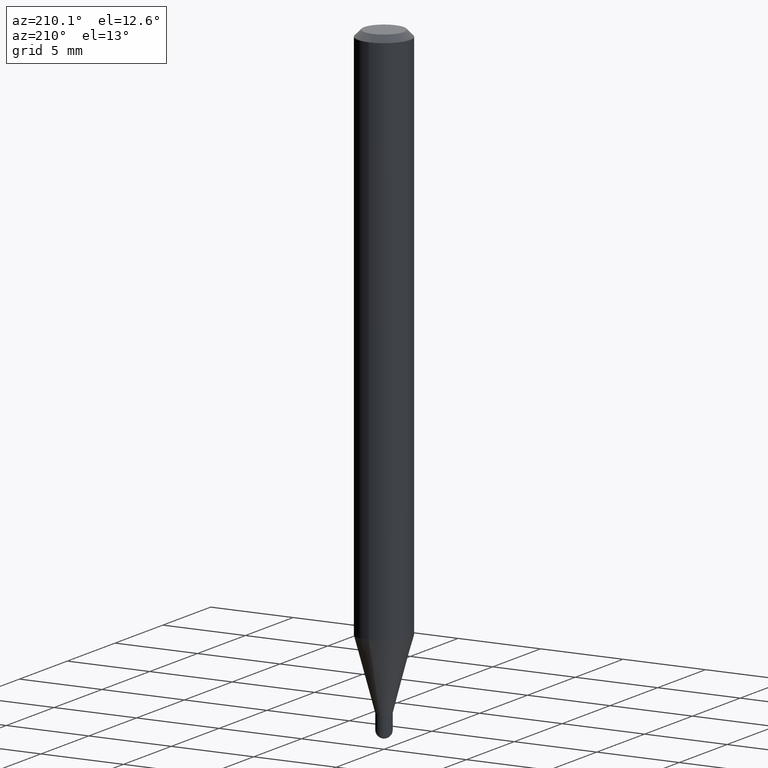
[diagram: clean part render]
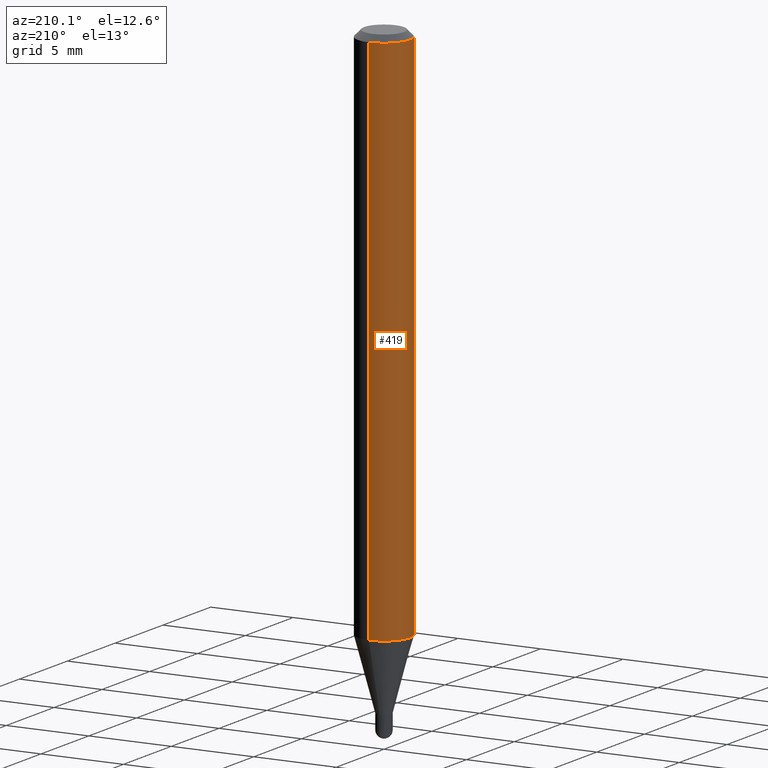
[diagram: same view with one face highlighted and labeled with its STEP entity id]
A machine part, auxiliary view. The second image highlights one B-rep face of the part: STEP entity #419.
In plain terms, the highlighted cylindrical surface (edge-blend (fillet) strip) has radius 1.5875 mm, axis along (-0, 0, 1).
Its self-contained STEP definition (entity closure, byte-faithful):
#46 = ORIENTED_EDGE ( 'NONE', *, *, #341, .T. ) ;
#53 = DIRECTION ( 'NONE',  ( -2.445478890525876859E-29, 3.491466897493240330E-15, 1.000000000000000000 ) ) ;
#63 = VERTEX_POINT ( 'NONE', #483 ) ;
#92 = CARTESIAN_POINT ( 'NONE',  ( 4.440892098500625669E-16, 0.06250000000000000000, -2.182166810933275206E-16 ) ) ;
#98 = DIRECTION ( 'NONE',  ( -6.982962677686265922E-15, -1.000000000000000000, 3.483106191921935554E-15 ) ) ;
#100 = CIRCLE ( 'NONE', #447, 0.06250000000000000000 ) ;
#132 = CARTESIAN_POINT ( 'NONE',  ( 3.668218335788817846E-31, -5.237200346239863576E-17, -0.01500000000000000812 ) ) ;
#138 = VECTOR ( 'NONE', #357, 39.37007874015748143 ) ;
#142 = VECTOR ( 'NONE', #448, 39.37007874015748143 ) ;
#170 = CIRCLE ( 'NONE', #313, 0.06250000000000000000 ) ;
#177 = CARTESIAN_POINT ( 'NONE',  ( 3.130026485361983037E-29, -4.468811366254904827E-15, -1.279923739063190569 ) ) ;
#187 = ORIENTED_EDGE ( 'NONE', *, *, #503, .F. ) ;
#208 = CARTESIAN_POINT ( 'NONE',  ( 4.440892098500936776E-16, 0.06249999999999551747, -1.279923739063190791 ) ) ;
#210 = CARTESIAN_POINT ( 'NONE',  ( -4.364351673553916201E-16, -0.06250000000000000000, 2.182166810933275206E-16 ) ) ;
#250 = AXIS2_PLACEMENT_3D ( 'NONE', #479, #344, #505 ) ;
#285 = ORIENTED_EDGE ( 'NONE', *, *, #299, .T. ) ;
#294 = VERTEX_POINT ( 'NONE', #208 ) ;
#297 = VERTEX_POINT ( 'NONE', #312 ) ;
#299 = EDGE_CURVE ( 'NONE', #416, #297, #397, .T. ) ;
#312 = CARTESIAN_POINT ( 'NONE',  ( -4.364351673553912750E-16, -0.06250000000000005551, -0.01499999999999979128 ) ) ;
#313 = AXIS2_PLACEMENT_3D ( 'NONE', #132, #53, #98 ) ;
#330 = DIRECTION ( 'NONE',  ( -2.445478890525876859E-29, 3.491466897493240330E-15, 1.000000000000000000 ) ) ;
#341 = EDGE_CURVE ( 'NONE', #294, #416, #100, .T. ) ;
#344 = DIRECTION ( 'NONE',  ( -2.445478890525876859E-29, 3.491466897493240330E-15, 1.000000000000000000 ) ) ;
#349 = CYLINDRICAL_SURFACE ( 'NONE', #250, 0.06250000000000000000 ) ;
#357 = DIRECTION ( 'NONE',  ( -2.445478890525876859E-29, 3.491466897493240330E-15, 1.000000000000000000 ) ) ;
#397 = LINE ( 'NONE', #210, #138 ) ;
#404 = ORIENTED_EDGE ( 'NONE', *, *, #489, .F. ) ;
#416 = VERTEX_POINT ( 'NONE', #435 ) ;
#419 = ADVANCED_FACE ( 'NONE', ( #440 ), #349, .T. ) ;
#435 = CARTESIAN_POINT ( 'NONE',  ( -4.364351673553604601E-16, -0.06250000000000448253, -1.279923739063190125 ) ) ;
#440 = FACE_OUTER_BOUND ( 'NONE', #499, .T. ) ;
#447 = AXIS2_PLACEMENT_3D ( 'NONE', #177, #330, #502 ) ;
#448 = DIRECTION ( 'NONE',  ( -2.445478890525876859E-29, 3.491466897493240330E-15, 1.000000000000000000 ) ) ;
#479 = CARTESIAN_POINT ( 'NONE',  ( 0.000000000000000000, 0.000000000000000000, 0.000000000000000000 ) ) ;
#483 = CARTESIAN_POINT ( 'NONE',  ( 4.440892098500940720E-16, 0.06249999999999995143, -0.01500000000000022669 ) ) ;
#484 = LINE ( 'NONE', #92, #142 ) ;
#489 = EDGE_CURVE ( 'NONE', #63, #297, #170, .T. ) ;
#499 = EDGE_LOOP ( 'NONE', ( #187, #46, #285, #404 ) ) ;
#502 = DIRECTION ( 'NONE',  ( -6.982962677686265922E-15, -1.000000000000000000, 4.370956789862821150E-15 ) ) ;
#503 = EDGE_CURVE ( 'NONE', #294, #63, #484, .T. ) ;
#505 = DIRECTION ( 'NONE',  ( -6.982962677686265922E-15, -1.000000000000000000, 3.491466897493240330E-15 ) ) ;